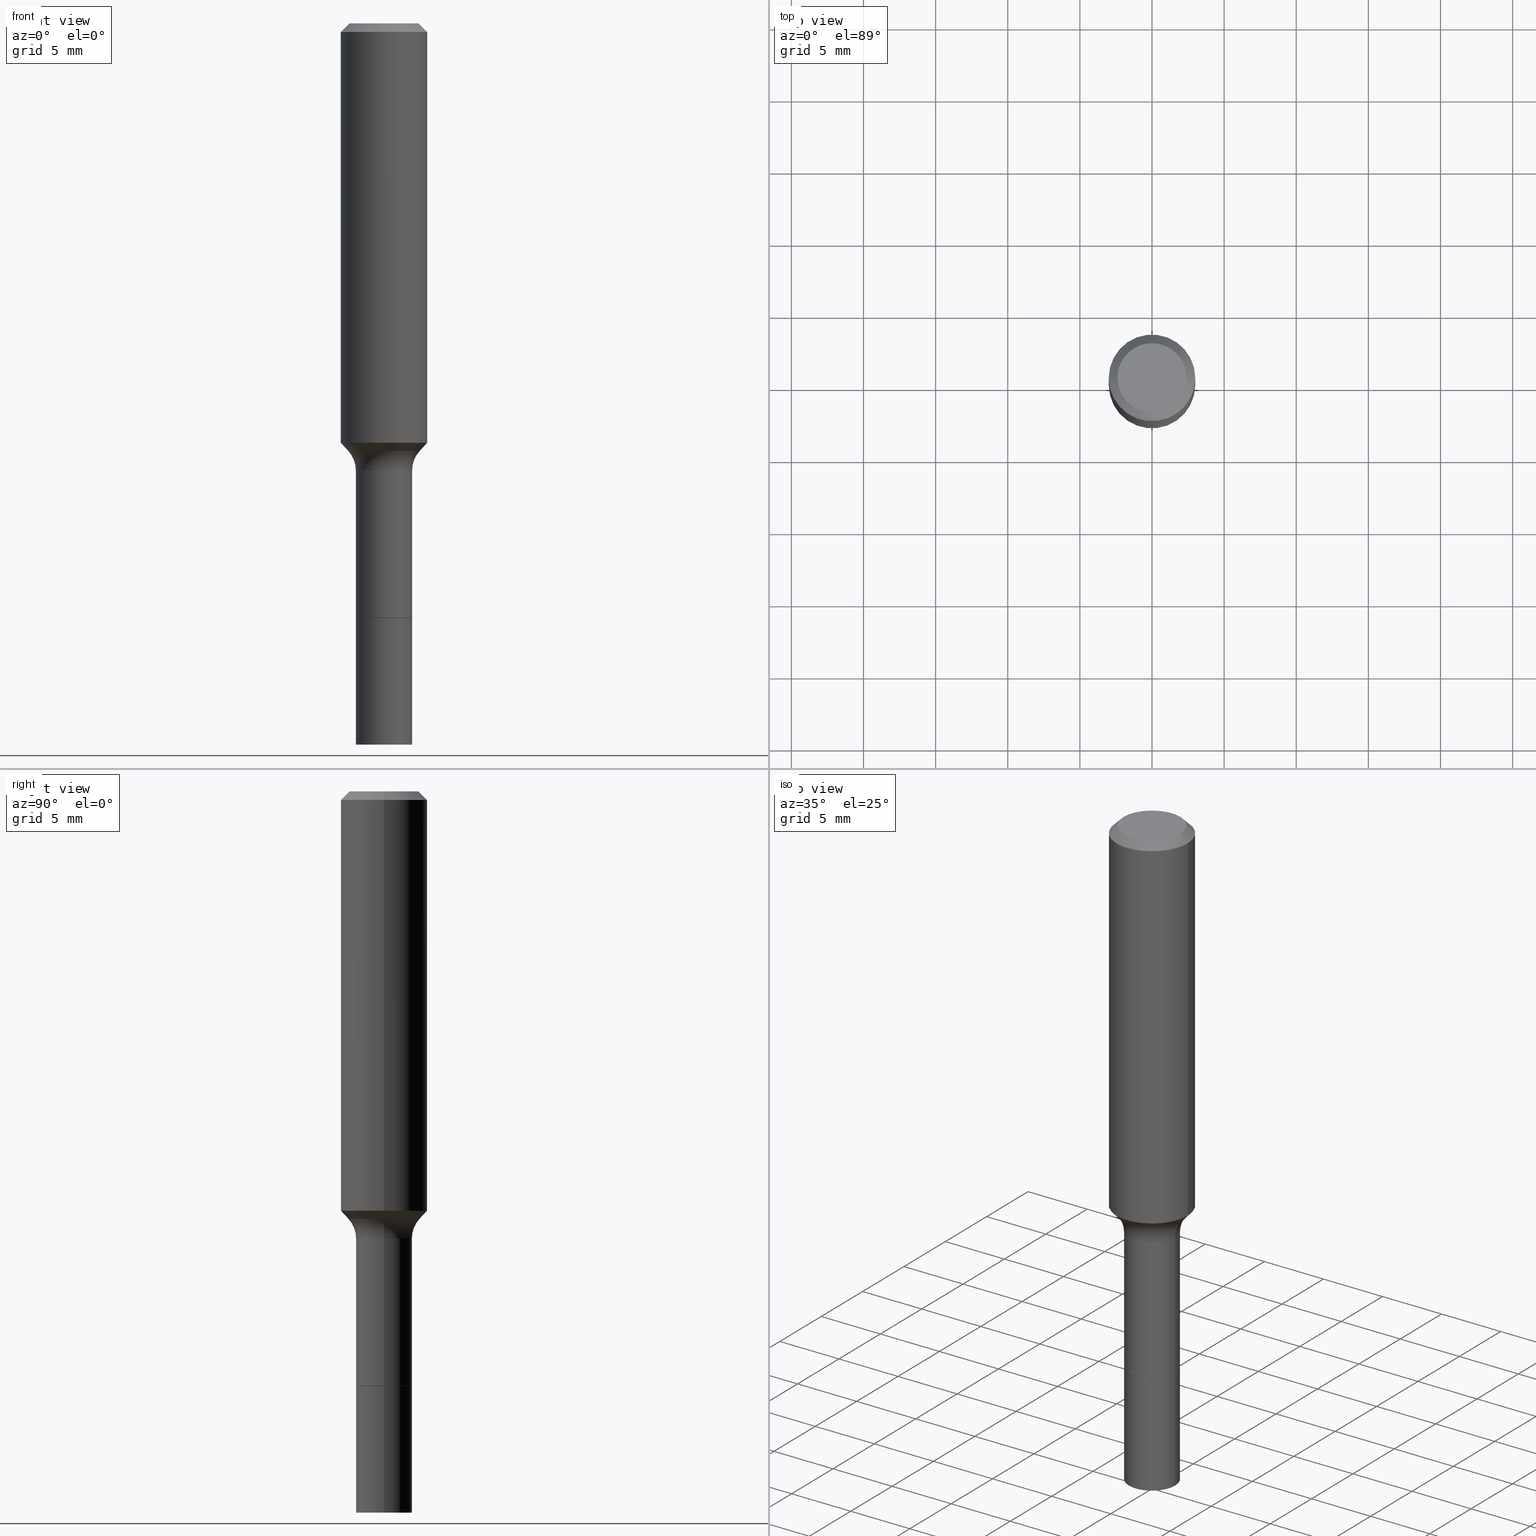
[diagram: canonical four-view strip — front | top / right | iso, engineering-drawing reading convention]
A machine part, canonical four-view strip (front | top / right | iso — engineering-drawing reading convention). The complete STEP part file that produces these views, byte-faithful:
ISO-10303-21;
HEADER;
FILE_DESCRIPTION (( 'STEP AP203' ),
    '1' );
FILE_NAME ('67084.STEP',
    '2025-04-01T15:27:57',
    ( '' ),
    ( '' ),
    'SwSTEP 2.0',
    'SolidWorks 2024',
    '' );
FILE_SCHEMA (( 'CONFIG_CONTROL_DESIGN' ));
ENDSEC;

DATA;
#1 = APPROVAL_PERSON_ORGANIZATION ( #371, #426, #249 ) ;
#2 = ADVANCED_FACE ( 'NONE', ( #292 ), #459, .T. ) ;
#3 = AXIS2_PLACEMENT_3D ( 'NONE', #210, #247, #11 ) ;
#4 = EDGE_CURVE ( 'NONE', #180, #253, #83, .T. ) ;
#5 = CARTESIAN_POINT ( 'NONE',  ( 2.851270220716778580E-29, -4.070858210275671756E-15, -1.165940131194999951 ) ) ;
#6 = ADVANCED_FACE ( 'NONE', ( #436 ), #508, .T. ) ;
#7 = DIRECTION ( 'NONE',  ( -2.445468806185136597E-29, 3.491481338843145583E-15, 1.000000000000000000 ) ) ;
#8 = PRODUCT_DEFINITION_FORMATION_WITH_SPECIFIED_SOURCE ( 'ANY', '', #483, .NOT_KNOWN. ) ;
#9 = CLOSED_SHELL ( 'NONE', ( #117, #131, #486, #209 ) ) ;
#10 = ORIENTED_EDGE ( 'NONE', *, *, #331, .F. ) ;
#11 = DIRECTION ( 'NONE',  ( 1.000000000000000000, -6.982962677686265133E-15, 0.000000000000000000 ) ) ;
#12 = DATE_AND_TIME ( #211, #205 ) ;
#13 = ORIENTED_EDGE ( 'NONE', *, *, #80, .T. ) ;
#14 = CALENDAR_DATE ( 2025, 1, 4 ) ;
#15 = CIRCLE ( 'NONE', #139, 0.07674999999999995715 ) ;
#16 = ORIENTED_EDGE ( 'NONE', *, *, #277, .T. ) ;
#17 = COORDINATED_UNIVERSAL_TIME_OFFSET ( 5, 0, .BEHIND. ) ;
#18 = ORIENTED_EDGE ( 'NONE', *, *, #433, .F. ) ;
#19 = EDGE_CURVE ( 'NONE', #164, #344, #346, .T. ) ;
#20 = CONICAL_SURFACE ( 'NONE', #308, 0.1180999999999999966, 0.7853981633974461696 ) ;
#21 = CYLINDRICAL_SURFACE ( 'NONE', #168, 0.07675000000000006817 ) ;
#22 = DIRECTION ( 'NONE',  ( -2.445468806185136597E-29, 3.491481338843145583E-15, 1.000000000000000000 ) ) ;
#23 = ORIENTED_EDGE ( 'NONE', *, *, #48, .F. ) ;
#24 = DIRECTION ( 'NONE',  ( -2.445468806185136597E-29, 3.491481338843145583E-15, 1.000000000000000000 ) ) ;
#25 = COORDINATED_UNIVERSAL_TIME_OFFSET ( 5, 0, .BEHIND. ) ;
#26 = AXIS2_PLACEMENT_3D ( 'NONE', #5, #318, #481 ) ;
#27 = DIRECTION ( 'NONE',  ( 1.000000000000000000, -6.982962677686263555E-15, 0.000000000000000000 ) ) ;
#28 = ORIENTED_EDGE ( 'NONE', *, *, #64, .T. ) ;
#29 = DIRECTION ( 'NONE',  ( 1.000000000000000000, -6.982962677686267499E-15, 4.875432709231658792E-29 ) ) ;
#30 = DIRECTION ( 'NONE',  ( -2.445468806185136877E-29, 3.491481338843145188E-15, 1.000000000000000000 ) ) ;
#31 = VECTOR ( 'NONE', #443, 39.37007874015748143 ) ;
#32 = DIRECTION ( 'NONE',  ( -2.445468806185136597E-29, 3.491481338843145583E-15, 1.000000000000000000 ) ) ;
#33 = APPROVAL ( #260, 'UNSPECIFIED' ) ;
#34 = DIRECTION ( 'NONE',  ( -6.982962677686266711E-15, -1.000000000000000000, 3.491481338843145583E-15 ) ) ;
#35 = ORIENTED_EDGE ( 'NONE', *, *, #363, .F. ) ;
#36 = DIRECTION ( 'NONE',  ( -2.445468806185136597E-29, 3.491481338843145583E-15, 1.000000000000000000 ) ) ;
#37 = AXIS2_PLACEMENT_3D ( 'NONE', #256, #506, #215 ) ;
#38 = DIRECTION ( 'NONE',  ( -2.445468806185136597E-29, 3.491481338843145583E-15, 1.000000000000000000 ) ) ;
#39 = EDGE_LOOP ( 'NONE', ( #416, #349 ) ) ;
#40 = CIRCLE ( 'NONE', #163, 0.07675000000000012368 ) ;
#41 = ORIENTED_EDGE ( 'NONE', *, *, #229, .F. ) ;
#42 = EDGE_CURVE ( 'NONE', #87, #91, #315, .T. ) ;
#43 = DIRECTION ( 'NONE',  ( -0.7071067811864205632, 7.493145998869895043E-15, 0.7071067811866742492 ) ) ;
#44 = CIRCLE ( 'NONE', #403, 0.1180999999999999966 ) ;
#45 = EDGE_CURVE ( 'NONE', #86, #208, #230, .T. ) ;
#46 = EDGE_CURVE ( 'NONE', #208, #170, #394, .T. ) ;
#47 = ORIENTED_EDGE ( 'NONE', *, *, #162, .F. ) ;
#48 = EDGE_CURVE ( 'NONE', #87, #159, #103, .T. ) ;
#49 = AXIS2_PLACEMENT_3D ( 'NONE', #454, #358, #492 ) ;
#50 = CARTESIAN_POINT ( 'NONE',  ( 5.776197320209328408E-31, -8.246878922347560526E-17, -0.02362000000000014435 ) ) ;
#51 = FACE_OUTER_BOUND ( 'NONE', #329, .T. ) ;
#52 = FACE_OUTER_BOUND ( 'NONE', #113, .T. ) ;
#53 = ORIENTED_EDGE ( 'NONE', *, *, #410, .F. ) ;
#54 = COORDINATED_UNIVERSAL_TIME_OFFSET ( 5, 0, .BEHIND. ) ;
#55 = CIRCLE ( 'NONE', #273, 0.07674999999999999878 ) ;
#56 = VERTEX_POINT ( 'NONE', #339 ) ;
#57 = PERSON_AND_ORGANIZATION_ROLE ( 'creator' ) ;
#58 = ORIENTED_EDGE ( 'NONE', *, *, #277, .F. ) ;
#59 = ORGANIZATION ( 'UNSPECIFIED', 'UNSPECIFIED', '' ) ;
#60 = PERSON_AND_ORGANIZATION ( #382, #59 ) ;
#61 = EDGE_CURVE ( 'NONE', #170, #340, #201, .T. ) ;
#62 = ORIENTED_EDGE ( 'NONE', *, *, #64, .F. ) ;
#63 = FACE_OUTER_BOUND ( 'NONE', #420, .T. ) ;
#64 = EDGE_CURVE ( 'NONE', #180, #130, #302, .T. ) ;
#65 = DIRECTION ( 'NONE',  ( 0.7071067811864205632, -2.468850131080928224E-15, 0.7071067811866742492 ) ) ;
#66 = ORIENTED_EDGE ( 'NONE', *, *, #474, .T. ) ;
#67 = CONICAL_SURFACE ( 'NONE', #155, 0.07625000000000001221, 0.7853981633972689780 ) ;
#68 = CARTESIAN_POINT ( 'NONE',  ( 2.984694677948959472E-29, -4.261352974058059028E-15, -1.220499999999999918 ) ) ;
#69 =( CONVERSION_BASED_UNIT ( 'INCH', #493 ) LENGTH_UNIT ( ) NAMED_UNIT ( #353 ) );
#70 = DIRECTION ( 'NONE',  ( -0.6819983600624976994, 7.399397606724284998E-15, 0.7313537016191712370 ) ) ;
#71 = CC_DESIGN_PERSON_AND_ORGANIZATION_ASSIGNMENT ( #94, #251, ( #359 ) ) ;
#72 = DIRECTION ( 'NONE',  ( -2.445468806185136597E-29, 3.491481338843145583E-15, 1.000000000000000000 ) ) ;
#73 = DIRECTION ( 'NONE',  ( 1.000000000000000000, -6.982962677686261189E-15, 0.000000000000000000 ) ) ;
#74 = CIRCLE ( 'NONE', #516, 0.08000000000000000167 ) ;
#75 = LINE ( 'NONE', #191, #421 ) ;
#76 = CARTESIAN_POINT ( 'NONE',  ( 2.984694677948959472E-29, -4.261352974058059028E-15, -1.220499999999999918 ) ) ;
#77 = EDGE_CURVE ( 'NONE', #250, #340, #183, .T. ) ;
#78 = CARTESIAN_POINT ( 'NONE',  ( -0.07675000000000001266, -5.723613194196990232E-15, -1.622500000000000053 ) ) ;
#79 = DIRECTION ( 'NONE',  ( 1.000000000000000000, -6.982962677686270655E-15, 0.000000000000000000 ) ) ;
#80 = EDGE_CURVE ( 'NONE', #250, #159, #55, .T. ) ;
#81 = AXIS2_PLACEMENT_3D ( 'NONE', #419, #34, #510 ) ;
#82 = DIRECTION ( 'NONE',  ( -2.445468806185136597E-29, 3.491481338843145583E-15, 1.000000000000000000 ) ) ;
#83 = CIRCLE ( 'NONE', #114, 0.1181000000000001354 ) ;
#84 = CARTESIAN_POINT ( 'NONE',  ( 5.776197320209328408E-31, -8.246878922347560526E-17, -0.02362000000000014435 ) ) ;
#85 = CARTESIAN_POINT ( 'NONE',  ( 0.09824170387046644859, -4.756876361795445018E-15, -1.165940131194999951 ) ) ;
#86 = VERTEX_POINT ( 'NONE', #376 ) ;
#87 = VERTEX_POINT ( 'NONE', #189 ) ;
#88 = PLANE ( 'NONE',  #49 ) ;
#89 =( NAMED_UNIT ( * ) PLANE_ANGLE_UNIT ( ) SI_UNIT ( $, .RADIAN. ) );
#90 = TOROIDAL_SURFACE ( 'NONE', #347, 0.1567499999999999727, 0.08000000000000000167 ) ;
#91 = VERTEX_POINT ( 'NONE', #351 ) ;
#92 = ADVANCED_FACE ( 'NONE', ( #503 ), #514, .F. ) ;
#93 = CARTESIAN_POINT ( 'NONE',  ( 2.984694677948959472E-29, -4.261352974058059028E-15, -1.220499999999999918 ) ) ;
#94 = PERSON_AND_ORGANIZATION ( #382, #59 ) ;
#95 = DIRECTION ( 'NONE',  ( -1.000000000000000000, 7.105427357601005014E-15, 0.000000000000000000 ) ) ;
#96 = ORIENTED_EDGE ( 'NONE', *, *, #77, .F. ) ;
#97 = CARTESIAN_POINT ( 'NONE',  ( 0.09447999999999998066, -7.704367267948738690E-16, -3.085620075131172158E-17 ) ) ;
#98 = EDGE_CURVE ( 'NONE', #123, #56, #274, .T. ) ;
#99 = CARTESIAN_POINT ( 'NONE',  ( 0.000000000000000000, 0.000000000000000000, 0.000000000000000000 ) ) ;
#100 = ORIENTED_EDGE ( 'NONE', *, *, #469, .T. ) ;
#101 = DIRECTION ( 'NONE',  ( 1.000000000000000000, -6.982962677686266711E-15, 4.876176775795936353E-29 ) ) ;
#102 = CALENDAR_DATE ( 2025, 1, 4 ) ;
#103 = LINE ( 'NONE', #379, #362 ) ;
#104 = ORIENTED_EDGE ( 'NONE', *, *, #98, .T. ) ;
#105 = VECTOR ( 'NONE', #303, 39.37007874015748143 ) ;
#106 = CARTESIAN_POINT ( 'NONE',  ( 7.545787641473140628E-46, -1.077338491108201769E-31, -3.085620075131671975E-17 ) ) ;
#107 = SECURITY_CLASSIFICATION_LEVEL ( 'unclassified' ) ;
#108 = CARTESIAN_POINT ( 'NONE',  ( 2.851270220716778580E-29, -4.070858210275671756E-15, -1.165940131194999951 ) ) ;
#109 = DIRECTION ( 'NONE',  ( -2.445468806185136597E-29, 3.491481338843145583E-15, 1.000000000000000000 ) ) ;
#110 = AXIS2_PLACEMENT_3D ( 'NONE', #388, #36, #457 ) ;
#111 = DIRECTION ( 'NONE',  ( 1.000000000000000000, -6.982962677686271444E-15, 0.000000000000000000 ) ) ;
#112 = CARTESIAN_POINT ( 'NONE',  ( 3.967773138035384083E-29, -5.664928472273003117E-15, -1.622500000000000053 ) ) ;
#113 = EDGE_LOOP ( 'NONE', ( #407, #104 ) ) ;
#114 = AXIS2_PLACEMENT_3D ( 'NONE', #266, #270, #193 ) ;
#115 = CIRCLE ( 'NONE', #479, 0.07674999999999999878 ) ;
#116 = ORIENTED_EDGE ( 'NONE', *, *, #42, .T. ) ;
#117 = ADVANCED_FACE ( 'NONE', ( #232 ), #298, .T. ) ;
#118 = DESIGN_CONTEXT ( 'detailed design', #190, 'design' ) ;
#119 = VECTOR ( 'NONE', #70, 39.37007874015748143 ) ;
#120 = LINE ( 'NONE', #406, #31 ) ;
#121 = ADVANCED_FACE ( 'NONE', ( #507 ), #220, .T. ) ;
#122 = APPROVAL_PERSON_ORGANIZATION ( #265, #33, #288 ) ;
#123 = VERTEX_POINT ( 'NONE', #78 ) ;
#124 = ORIENTED_EDGE ( 'NONE', *, *, #162, .T. ) ;
#125 = ORIENTED_EDGE ( 'NONE', *, *, #19, .F. ) ;
#126 = EDGE_LOOP ( 'NONE', ( #325, #515, #513, #491 ) ) ;
#127 = DIRECTION ( 'NONE',  ( 2.445468806185136597E-29, -3.491481338843145583E-15, -1.000000000000000000 ) ) ;
#128 = DATE_TIME_ROLE ( 'classification_date' ) ;
#129 = EDGE_CURVE ( 'NONE', #86, #340, #74, .T. ) ;
#130 = VERTEX_POINT ( 'NONE', #435 ) ;
#131 = ADVANCED_FACE ( 'NONE', ( #313 ), #88, .T. ) ;
#132 = DIRECTION ( 'NONE',  ( 1.000000000000000000, -6.982962677686261189E-15, 0.000000000000000000 ) ) ;
#133 = CIRCLE ( 'NONE', #441, 0.09447999999999998066 ) ;
#134 = ORIENTED_EDGE ( 'NONE', *, *, #401, .T. ) ;
#135 = ORIENTED_EDGE ( 'NONE', *, *, #271, .F. ) ;
#136 = DIRECTION ( 'NONE',  ( -2.445468806185136597E-29, 3.491481338843145583E-15, 1.000000000000000000 ) ) ;
#137 = EDGE_LOOP ( 'NONE', ( #41, #134, #66, #135 ) ) ;
#138 = DIRECTION ( 'NONE',  ( 1.000000000000000000, -6.982962677686265922E-15, 0.000000000000000000 ) ) ;
#139 = AXIS2_PLACEMENT_3D ( 'NONE', #68, #24, #223 ) ;
#140 = DIRECTION ( 'NONE',  ( 1.000000000000000000, -6.982962677686271444E-15, 0.000000000000000000 ) ) ;
#141 = LINE ( 'NONE', #463, #490 ) ;
#142 = APPLICATION_PROTOCOL_DEFINITION ( 'international standard', 'config_control_design', 1994, #246 ) ;
#143 = CARTESIAN_POINT ( 'NONE',  ( 3.967773138035384644E-29, -5.664928472273003906E-15, -1.622500000000000275 ) ) ;
#144 = AXIS2_PLACEMENT_3D ( 'NONE', #387, #38, #73 ) ;
#145 = CARTESIAN_POINT ( 'NONE',  ( 0.000000000000000000, 0.000000000000000000, 0.000000000000000000 ) ) ;
#146 = CARTESIAN_POINT ( 'NONE',  ( -0.07674999999999997102, 5.453415496958766868E-16, -3.775282681770638931E-30 ) ) ;
#147 = ORIENTED_EDGE ( 'NONE', *, *, #240, .T. ) ;
#148 = DIRECTION ( 'NONE',  ( 1.000000000000000000, -6.982962677686266711E-15, 4.876176775795936353E-29 ) ) ;
#149 = CARTESIAN_POINT ( 'NONE',  ( -9.143302097589743756E-31, -1.147794272764384760E-14, -1.622500000000000053 ) ) ;
#150 = ORIENTED_EDGE ( 'NONE', *, *, #45, .F. ) ;
#151 = EDGE_CURVE ( 'NONE', #344, #164, #40, .T. ) ;
#152 = ORIENTED_EDGE ( 'NONE', *, *, #395, .F. ) ;
#153 = DIRECTION ( 'NONE',  ( 1.000000000000000000, -6.982962677686270655E-15, 0.000000000000000000 ) ) ;
#154 = ORIENTED_EDGE ( 'NONE', *, *, #19, .T. ) ;
#155 = AXIS2_PLACEMENT_3D ( 'NONE', #282, #206, #360 ) ;
#156 = CC_DESIGN_DATE_AND_TIME_ASSIGNMENT ( #423, #365, ( #404 ) ) ;
#157 = CARTESIAN_POINT ( 'NONE',  ( 7.545787641473140628E-46, -1.077338491108201769E-31, -3.085620075131671975E-17 ) ) ;
#158 = CC_DESIGN_APPROVAL ( #33, ( #404 ) ) ;
#159 = VERTEX_POINT ( 'NONE', #326 ) ;
#160 = CC_DESIGN_APPROVAL ( #426, ( #359 ) ) ;
#161 = CARTESIAN_POINT ( 'NONE',  ( 0.07674999999999995715, -4.797295359570479556E-15, -1.220499999999999918 ) ) ;
#162 = EDGE_CURVE ( 'NONE', #344, #123, #279, .T. ) ;
#163 = AXIS2_PLACEMENT_3D ( 'NONE', #214, #7, #132 ) ;
#164 = VERTEX_POINT ( 'NONE', #286 ) ;
#165 = CARTESIAN_POINT ( 'NONE',  ( 3.772893820736570314E-46, -5.386692455541008845E-32, -1.542810037565835988E-17 ) ) ;
#166 = CALENDAR_DATE ( 2025, 1, 4 ) ;
#167 = ORIENTED_EDGE ( 'NONE', *, *, #389, .F. ) ;
#168 = AXIS2_PLACEMENT_3D ( 'NONE', #174, #337, #138 ) ;
#169 = APPROVAL_STATUS ( 'not_yet_approved' ) ;
#170 = VERTEX_POINT ( 'NONE', #161 ) ;
#171 = ORIENTED_EDGE ( 'NONE', *, *, #395, .T. ) ;
#172 = CONICAL_SURFACE ( 'NONE', #484, 0.09824170387046647634, 0.7504915783575606403 ) ;
#173 = EDGE_LOOP ( 'NONE', ( #154, #124, #10, #377 ) ) ;
#174 = CARTESIAN_POINT ( 'NONE',  ( 3.967773138035384083E-29, -5.664928472273003117E-15, -1.622500000000000053 ) ) ;
#175 = DIRECTION ( 'NONE',  ( -2.445468806185136597E-29, 3.491481338843145583E-15, 1.000000000000000000 ) ) ;
#176 = ORIENTED_EDGE ( 'NONE', *, *, #363, .T. ) ;
#177 = CARTESIAN_POINT ( 'NONE',  ( -0.09447999999999998066, 7.009847083995354710E-16, -3.085620075132147757E-17 ) ) ;
#178 = APPROVAL_DATE_TIME ( #327, #236 ) ;
#179 = DIRECTION ( 'NONE',  ( -2.445468806185136597E-29, 3.491481338843145583E-15, 1.000000000000000000 ) ) ;
#180 = VERTEX_POINT ( 'NONE', #488 ) ;
#181 = CARTESIAN_POINT ( 'NONE',  ( 3.967773138035384644E-29, -5.664928472273003906E-15, -1.622500000000000275 ) ) ;
#182 = SHAPE_DEFINITION_REPRESENTATION ( #199, #311 ) ;
#183 = LINE ( 'NONE', #146, #301 ) ;
#184 = ORIENTED_EDGE ( 'NONE', *, *, #469, .F. ) ;
#185 = AXIS2_PLACEMENT_3D ( 'NONE', #197, #212, #203 ) ;
#186 = DIRECTION ( 'NONE',  ( 0.6819983600624976994, -2.208861293262466731E-15, 0.7313537016191712370 ) ) ;
#187 = MANIFOLD_SOLID_BREP ( 'Body-Move/Copy2[1]', #9 ) ;
#188 = ADVANCED_FACE ( 'NONE', ( #324 ), #90, .F. ) ;
#189 = CARTESIAN_POINT ( 'NONE',  ( 0.07625000000000001221, -6.197379376446582216E-15, -1.622500000000000275 ) ) ;
#190 = APPLICATION_CONTEXT ( 'configuration controlled 3d designs of mechanical parts and assemblies' ) ;
#191 = CARTESIAN_POINT ( 'NONE',  ( 0.09824170387046647634, -4.756876361795445807E-15, -1.165940131194999951 ) ) ;
#192 = CIRCLE ( 'NONE', #267, 0.09447999999999998066 ) ;
#193 = DIRECTION ( 'NONE',  ( 1.000000000000000000, -6.982962677686265133E-15, 0.000000000000000000 ) ) ;
#194 = MANIFOLD_SOLID_BREP ( 'Body-Move/Copy2[2]', #494 ) ;
#195 = ORIENTED_EDGE ( 'NONE', *, *, #389, .T. ) ;
#196 = AXIS2_PLACEMENT_3D ( 'NONE', #145, #422, #101 ) ;
#197 = CARTESIAN_POINT ( 'NONE',  ( 3.967773138035384083E-29, -5.664928472273003117E-15, -1.622500000000000053 ) ) ;
#198 = DIRECTION ( 'NONE',  ( 1.000000000000000000, -6.982962677686259611E-15, 0.000000000000000000 ) ) ;
#199 = PRODUCT_DEFINITION_SHAPE ( 'NONE', 'NONE',  #404 ) ;
#200 = APPROVAL_PERSON_ORGANIZATION ( #224, #236, #464 ) ;
#201 = CIRCLE ( 'NONE', #496, 0.07674999999999995715 ) ;
#202 = ADVANCED_FACE ( 'NONE', ( #368 ), #409, .T. ) ;
#203 = DIRECTION ( 'NONE',  ( -1.000000000000000000, 6.982962677686265922E-15, -4.876176775795935793E-29 ) ) ;
#204 = DIRECTION ( 'NONE',  ( 2.445468806185136597E-29, -3.491481338843145583E-15, -1.000000000000000000 ) ) ;
#205 = LOCAL_TIME ( 11, 27, 57.00000000000000000, #54 ) ;
#206 = DIRECTION ( 'NONE',  ( -2.445468806185136597E-29, 3.491481338843145583E-15, 1.000000000000000000 ) ) ;
#207 = PLANE ( 'NONE',  #185 ) ;
#208 = VERTEX_POINT ( 'NONE', #85 ) ;
#209 = ADVANCED_FACE ( 'NONE', ( #52 ), #207, .F. ) ;
#210 = CARTESIAN_POINT ( 'NONE',  ( 2.799192946632236054E-29, -3.996505664790683572E-15, -1.144644715791283796 ) ) ;
#211 = CALENDAR_DATE ( 2025, 1, 4 ) ;
#212 = DIRECTION ( 'NONE',  ( 2.438088387897960049E-29, -3.491481338843145188E-15, -1.000000000000000000 ) ) ;
#213 = EDGE_LOOP ( 'NONE', ( #150, #456, #171, #372 ) ) ;
#214 = CARTESIAN_POINT ( 'NONE',  ( 4.813905344975441835E-29, -6.872981015512731707E-15, -1.968500000000000139 ) ) ;
#215 = DIRECTION ( 'NONE',  ( 1.000000000000000000, 0.000000000000000000, 0.000000000000000000 ) ) ;
#216 = ORIENTED_EDGE ( 'NONE', *, *, #448, .F. ) ;
#217 = ORIENTED_EDGE ( 'NONE', *, *, #4, .T. ) ;
#218 = CYLINDRICAL_SURFACE ( 'NONE', #417, 0.1181000000000000660 ) ;
#219 = COORDINATED_UNIVERSAL_TIME_OFFSET ( 5, 0, .BEHIND. ) ;
#220 = CONICAL_SURFACE ( 'NONE', #334, 0.07625000000000001221, 0.7853981633972689780 ) ;
#221 = DIRECTION ( 'NONE',  ( -2.445468806185136877E-29, 3.491481338843145188E-15, 1.000000000000000000 ) ) ;
#222 = EDGE_LOOP ( 'NONE', ( #281, #216 ) ) ;
#223 = DIRECTION ( 'NONE',  ( 1.000000000000000000, -6.982962677686263555E-15, 0.000000000000000000 ) ) ;
#224 = PERSON_AND_ORGANIZATION ( #382, #59 ) ;
#225 = CARTESIAN_POINT ( 'NONE',  ( 0.1181000000000000660, -8.246878922347485584E-16, 5.758764772215003944E-30 ) ) ;
#226 = FACE_OUTER_BOUND ( 'NONE', #213, .T. ) ;
#227 = ORIENTED_EDGE ( 'NONE', *, *, #410, .T. ) ;
#228 = FACE_OUTER_BOUND ( 'NONE', #413, .T. ) ;
#229 = EDGE_CURVE ( 'NONE', #482, #405, #133, .T. ) ;
#230 = CIRCLE ( 'NONE', #287, 0.09824170387046647634 ) ;
#231 = CARTESIAN_POINT ( 'NONE',  ( 0.07675000000000006817, -6.200870857785424434E-15, -1.622500000000000053 ) ) ;
#232 = FACE_OUTER_BOUND ( 'NONE', #173, .T. ) ;
#233 = CC_DESIGN_SECURITY_CLASSIFICATION ( #359, ( #8 ) ) ;
#234 = ORIENTED_EDGE ( 'NONE', *, *, #61, .F. ) ;
#235 = LINE ( 'NONE', #238, #475 ) ;
#236 = APPROVAL ( #169, 'UNSPECIFIED' ) ;
#237 = AXIS2_PLACEMENT_3D ( 'NONE', #50, #204, #444 ) ;
#238 = CARTESIAN_POINT ( 'NONE',  ( -0.07625000000000001221, -5.123139636255927230E-15, -1.622500000000000275 ) ) ;
#239 = FACE_OUTER_BOUND ( 'NONE', #258, .T. ) ;
#240 = EDGE_CURVE ( 'NONE', #159, #250, #115, .T. ) ;
#241 = AXIS2_PLACEMENT_3D ( 'NONE', #165, #364, #400 ) ;
#242 = DIRECTION ( 'NONE',  ( -2.445468806185136597E-29, 3.491481338843145583E-15, 1.000000000000000000 ) ) ;
#243 = ADVANCED_FACE ( 'NONE', ( #239 ), #172, .T. ) ;
#244 = EDGE_LOOP ( 'NONE', ( #147, #332, #234, #167 ) ) ;
#245 = ORIENTED_EDGE ( 'NONE', *, *, #474, .F. ) ;
#246 = APPLICATION_CONTEXT ( 'configuration controlled 3d designs of mechanical parts and assemblies' ) ;
#247 = DIRECTION ( 'NONE',  ( -2.445468806185136597E-29, 3.491481338843145583E-15, 1.000000000000000000 ) ) ;
#248 = VECTOR ( 'NONE', #30, 39.37007874015748143 ) ;
#249 = APPROVAL_ROLE ( '' ) ;
#250 = VERTEX_POINT ( 'NONE', #393 ) ;
#251 = PERSON_AND_ORGANIZATION_ROLE ( 'classification_officer' ) ;
#252 = CIRCLE ( 'NONE', #428, 0.07625000000000001221 ) ;
#253 = VERTEX_POINT ( 'NONE', #396 ) ;
#254 = LOCAL_TIME ( 11, 27, 57.00000000000000000, #17 ) ;
#255 = CARTESIAN_POINT ( 'NONE',  ( -0.07674999999999995715, -4.416926303134944719E-15, -1.220499999999999918 ) ) ;
#256 = CARTESIAN_POINT ( 'NONE',  ( 0.000000000000000000, 0.000000000000000000, 0.000000000000000000 ) ) ;
#257 = DIRECTION ( 'NONE',  ( 1.000000000000000000, -6.982962677686270655E-15, 0.000000000000000000 ) ) ;
#258 = EDGE_LOOP ( 'NONE', ( #498, #263, #299, #35 ) ) ;
#259 = FACE_OUTER_BOUND ( 'NONE', #460, .T. ) ;
#260 = APPROVAL_STATUS ( 'not_yet_approved' ) ;
#261 = TOROIDAL_SURFACE ( 'NONE', #321, 0.1567499999999999727, 0.08000000000000000167 ) ;
#262 = EDGE_CURVE ( 'NONE', #91, #250, #235, .T. ) ;
#263 = ORIENTED_EDGE ( 'NONE', *, *, #433, .T. ) ;
#264 = DIRECTION ( 'NONE',  ( -2.445468806185136877E-29, 3.491481338843145188E-15, 1.000000000000000000 ) ) ;
#265 = PERSON_AND_ORGANIZATION ( #382, #59 ) ;
#266 = CARTESIAN_POINT ( 'NONE',  ( 2.799192946632236054E-29, -3.996505664790683572E-15, -1.144644715791283796 ) ) ;
#267 = AXIS2_PLACEMENT_3D ( 'NONE', #106, #72, #29 ) ;
#268 = DIRECTION ( 'NONE',  ( 1.000000000000000000, -6.982962677686266711E-15, 0.000000000000000000 ) ) ;
#269 = LOCAL_TIME ( 11, 27, 57.00000000000000000, #25 ) ;
#270 = DIRECTION ( 'NONE',  ( -2.445468806185136597E-29, 3.491481338843145583E-15, 1.000000000000000000 ) ) ;
#271 = EDGE_CURVE ( 'NONE', #405, #470, #120, .T. ) ;
#272 = LINE ( 'NONE', #504, #105 ) ;
#273 = AXIS2_PLACEMENT_3D ( 'NONE', #304, #348, #354 ) ;
#274 = CIRCLE ( 'NONE', #399, 0.07675000000000001266 ) ;
#275 = DIRECTION ( 'NONE',  ( 1.000000000000000000, -6.982962677686267499E-15, 4.875432709231658792E-29 ) ) ;
#276 = AXIS2_PLACEMENT_3D ( 'NONE', #149, #466, #424 ) ;
#277 = EDGE_CURVE ( 'NONE', #253, #180, #386, .T. ) ;
#278 = VECTOR ( 'NONE', #480, 39.37007874015748143 ) ;
#279 = LINE ( 'NONE', #320, #278 ) ;
#280 = ORIENTED_EDGE ( 'NONE', *, *, #98, .F. ) ;
#281 = ORIENTED_EDGE ( 'NONE', *, *, #42, .F. ) ;
#282 = CARTESIAN_POINT ( 'NONE',  ( 3.967773138035384644E-29, -5.664928472273003906E-15, -1.622500000000000275 ) ) ;
#283 = DIRECTION ( 'NONE',  ( 1.000000000000000000, -6.982962677686265133E-15, 4.883557194083112340E-29 ) ) ;
#284 = DATE_AND_TIME ( #14, #415 ) ;
#285 = ORIENTED_EDGE ( 'NONE', *, *, #448, .T. ) ;
#286 = CARTESIAN_POINT ( 'NONE',  ( 0.07675000000000012368, -7.408923401025153024E-15, -1.968500000000000139 ) ) ;
#287 = AXIS2_PLACEMENT_3D ( 'NONE', #108, #22, #257 ) ;
#288 = APPROVAL_ROLE ( '' ) ;
#289 = ORIENTED_EDGE ( 'NONE', *, *, #45, .T. ) ;
#290 = DIRECTION ( 'NONE',  ( 1.000000000000000000, -6.982962677686265922E-15, 4.876176775795935793E-29 ) ) ;
#291 =( LENGTH_UNIT ( ) NAMED_UNIT ( * ) SI_UNIT ( $, .METRE. ) );
#292 = FACE_OUTER_BOUND ( 'NONE', #244, .T. ) ;
#293 = EDGE_LOOP ( 'NONE', ( #18, #289, #176, #58 ) ) ;
#294 = CYLINDRICAL_SURFACE ( 'NONE', #196, 0.1181000000000000660 ) ;
#295 = PRODUCT_RELATED_PRODUCT_CATEGORY ( 'detail', '', ( #483 ) ) ;
#296 = COORDINATED_UNIVERSAL_TIME_OFFSET ( 5, 0, .BEHIND. ) ;
#297 = CC_DESIGN_APPROVAL ( #236, ( #8 ) ) ;
#298 = CYLINDRICAL_SURFACE ( 'NONE', #453, 0.07675000000000006817 ) ;
#299 = ORIENTED_EDGE ( 'NONE', *, *, #4, .F. ) ;
#300 = LINE ( 'NONE', #383, #119 ) ;
#301 = VECTOR ( 'NONE', #221, 39.37007874015748143 ) ;
#302 = LINE ( 'NONE', #225, #248 ) ;
#303 = DIRECTION ( 'NONE',  ( -2.445468806185136877E-29, 3.491481338843145188E-15, 1.000000000000000000 ) ) ;
#304 = CARTESIAN_POINT ( 'NONE',  ( 3.966550403632291282E-29, -5.663182731603581614E-15, -1.622000000000000108 ) ) ;
#305 = EDGE_LOOP ( 'NONE', ( #116, #447, #487, #23 ) ) ;
#306 = DIRECTION ( 'NONE',  ( 1.000000000000000000, -6.982962677686265133E-15, 0.000000000000000000 ) ) ;
#307 = DIRECTION ( 'NONE',  ( -2.445468806185136597E-29, 3.491481338843145583E-15, 1.000000000000000000 ) ) ;
#308 = AXIS2_PLACEMENT_3D ( 'NONE', #84, #127, #402 ) ;
#309 = CARTESIAN_POINT ( 'NONE',  ( 3.967773138035384644E-29, -5.664928472273003906E-15, -1.622500000000000275 ) ) ;
#310 = CARTESIAN_POINT ( 'NONE',  ( 3.966550403632291282E-29, -5.663182731603581614E-15, -1.622000000000000108 ) ) ;
#311 = ADVANCED_BREP_SHAPE_REPRESENTATION ( '67084', ( #187, #194, #37 ), #369 ) ;
#312 = DATE_AND_TIME ( #497, #254 ) ;
#313 = FACE_OUTER_BOUND ( 'NONE', #429, .T. ) ;
#314 = ADVANCED_FACE ( 'NONE', ( #411 ), #449, .F. ) ;
#315 = CIRCLE ( 'NONE', #434, 0.07625000000000001221 ) ;
#316 = DIRECTION ( 'NONE',  ( 1.000000000000000000, -6.982962677686265133E-15, 0.000000000000000000 ) ) ;
#317 = ADVANCED_FACE ( 'NONE', ( #442 ), #20, .T. ) ;
#318 = DIRECTION ( 'NONE',  ( -2.445468806185136597E-29, 3.491481338843145583E-15, 1.000000000000000000 ) ) ;
#319 = ORIENTED_EDGE ( 'NONE', *, *, #271, .T. ) ;
#320 = CARTESIAN_POINT ( 'NONE',  ( -0.07675000000000006817, -5.119586922577125543E-15, -1.622500000000000053 ) ) ;
#321 = AXIS2_PLACEMENT_3D ( 'NONE', #350, #461, #418 ) ;
#322 = CARTESIAN_POINT ( 'NONE',  ( 3.967773138035384083E-29, -5.664928472273003117E-15, -1.622500000000000053 ) ) ;
#323 = ADVANCED_FACE ( 'NONE', ( #51 ), #67, .T. ) ;
#324 = FACE_OUTER_BOUND ( 'NONE', #126, .T. ) ;
#325 = ORIENTED_EDGE ( 'NONE', *, *, #129, .F. ) ;
#326 = CARTESIAN_POINT ( 'NONE',  ( 0.07674999999999999878, -6.199125117116002142E-15, -1.622000000000000108 ) ) ;
#327 = DATE_AND_TIME ( #166, #269 ) ;
#328 = CIRCLE ( 'NONE', #110, 0.1180999999999999966 ) ;
#329 = EDGE_LOOP ( 'NONE', ( #366, #285, #336, #370 ) ) ;
#330 = PERSON_AND_ORGANIZATION_ROLE ( 'creator' ) ;
#331 = EDGE_CURVE ( 'NONE', #56, #123, #373, .T. ) ;
#332 = ORIENTED_EDGE ( 'NONE', *, *, #77, .T. ) ;
#333 = ADVANCED_FACE ( 'NONE', ( #259 ), #294, .T. ) ;
#334 = AXIS2_PLACEMENT_3D ( 'NONE', #143, #82, #316 ) ;
#335 = PERSON_AND_ORGANIZATION ( #382, #59 ) ;
#336 = ORIENTED_EDGE ( 'NONE', *, *, #48, .T. ) ;
#337 = DIRECTION ( 'NONE',  ( -2.445468806185136597E-29, 3.491481338843145583E-15, 1.000000000000000000 ) ) ;
#338 = MECHANICAL_CONTEXT ( 'NONE', #246, 'mechanical' ) ;
#339 = CARTESIAN_POINT ( 'NONE',  ( 0.07675000000000001266, -6.200870857785424434E-15, -1.622500000000000053 ) ) ;
#340 = VERTEX_POINT ( 'NONE', #255 ) ;
#341 = VECTOR ( 'NONE', #264, 39.37007874015748143 ) ;
#342 = PERSON_AND_ORGANIZATION ( #382, #59 ) ;
#343 = DIRECTION ( 'NONE',  ( 1.000000000000000000, -6.982962677686265922E-15, 0.000000000000000000 ) ) ;
#344 = VERTEX_POINT ( 'NONE', #427 ) ;
#345 = CARTESIAN_POINT ( 'NONE',  ( 5.776197320209328408E-31, -8.246878922347560526E-17, -0.02362000000000014435 ) ) ;
#346 = CIRCLE ( 'NONE', #144, 0.07675000000000012368 ) ;
#347 = AXIS2_PLACEMENT_3D ( 'NONE', #93, #242, #283 ) ;
#348 = DIRECTION ( 'NONE',  ( -2.445468806185136597E-29, 3.491481338843145583E-15, 1.000000000000000000 ) ) ;
#349 = ORIENTED_EDGE ( 'NONE', *, *, #229, .T. ) ;
#350 = CARTESIAN_POINT ( 'NONE',  ( 2.984694677948959472E-29, -4.261352974058059028E-15, -1.220499999999999918 ) ) ;
#351 = CARTESIAN_POINT ( 'NONE',  ( -0.07625000000000001221, -5.120490409081816818E-15, -1.622500000000000275 ) ) ;
#352 = DIRECTION ( 'NONE',  ( -2.445468806185136877E-29, 3.491481338843145188E-15, 1.000000000000000000 ) ) ;
#353 = DIMENSIONAL_EXPONENTS ( 1.000000000000000000, 0.000000000000000000, 0.000000000000000000, 0.000000000000000000, 0.000000000000000000, 0.000000000000000000, 0.000000000000000000 ) ;
#354 = DIRECTION ( 'NONE',  ( 1.000000000000000000, -6.982962677686259611E-15, 0.000000000000000000 ) ) ;
#355 = AXIS2_PLACEMENT_3D ( 'NONE', #322, #485, #111 ) ;
#356 = APPROVAL_DATE_TIME ( #312, #426 ) ;
#357 = DIRECTION ( 'NONE',  ( -2.445468806185136597E-29, 3.491481338843145583E-15, 1.000000000000000000 ) ) ;
#358 = DIRECTION ( 'NONE',  ( 2.438088387897960049E-29, -3.491481338843145188E-15, -1.000000000000000000 ) ) ;
#359 = SECURITY_CLASSIFICATION ( '', '', #107 ) ;
#360 = DIRECTION ( 'NONE',  ( 1.000000000000000000, -6.982962677686265133E-15, 0.000000000000000000 ) ) ;
#361 = ORIENTED_EDGE ( 'NONE', *, *, #151, .F. ) ;
#362 = VECTOR ( 'NONE', #65, 39.37007874015748854 ) ;
#363 = EDGE_CURVE ( 'NONE', #208, #180, #75, .T. ) ;
#364 = DIRECTION ( 'NONE',  ( 2.438088387897960049E-29, -3.491481338843145188E-15, -1.000000000000000000 ) ) ;
#365 = DATE_TIME_ROLE ( 'creation_date' ) ;
#366 = ORIENTED_EDGE ( 'NONE', *, *, #262, .F. ) ;
#367 = ADVANCED_FACE ( 'NONE', ( #226 ), #261, .F. ) ;
#368 = FACE_OUTER_BOUND ( 'NONE', #425, .T. ) ;
#369 =( GEOMETRIC_REPRESENTATION_CONTEXT ( 3 ) GLOBAL_UNCERTAINTY_ASSIGNED_CONTEXT ( ( #499 ) ) GLOBAL_UNIT_ASSIGNED_CONTEXT ( ( #69, #89, #375 ) ) REPRESENTATION_CONTEXT ( 'NONE', 'WORKASPACE' ) );
#370 = ORIENTED_EDGE ( 'NONE', *, *, #80, .F. ) ;
#371 = PERSON_AND_ORGANIZATION ( #382, #59 ) ;
#372 = ORIENTED_EDGE ( 'NONE', *, *, #46, .F. ) ;
#373 = CIRCLE ( 'NONE', #355, 0.07675000000000001266 ) ;
#374 = CARTESIAN_POINT ( 'NONE',  ( -0.1181000000000000660, 8.391509709326787887E-16, -5.809262341591047287E-30 ) ) ;
#375 =( NAMED_UNIT ( * ) SI_UNIT ( $, .STERADIAN. ) SOLID_ANGLE_UNIT ( ) );
#376 = CARTESIAN_POINT ( 'NONE',  ( -0.09824170387046644859, -3.372808919937123320E-15, -1.165940131194999951 ) ) ;
#377 = ORIENTED_EDGE ( 'NONE', *, *, #440, .F. ) ;
#378 = DIRECTION ( 'NONE',  ( 0.7071067811865460184, -7.319954787623251312E-15, -0.7071067811865490160 ) ) ;
#379 = CARTESIAN_POINT ( 'NONE',  ( 0.07625000000000001221, -6.197379376446582216E-15, -1.622500000000000275 ) ) ;
#380 = AXIS2_PLACEMENT_3D ( 'NONE', #500, #32, #290 ) ;
#381 = EDGE_LOOP ( 'NONE', ( #217, #227, #245, #62 ) ) ;
#382 = PERSON ( 'UNSPECIFIED', 'UNSPECIFIED', 'UNSPECIFIED', ('UNSPECIFIED'), ('UNSPECIFIED'), ('UNSPECIFIED') ) ;
#383 = CARTESIAN_POINT ( 'NONE',  ( -0.09824170387046647634, -3.372808919937122926E-15, -1.165940131194999951 ) ) ;
#384 = DIRECTION ( 'NONE',  ( -2.445468806185136597E-29, 3.491481338843145583E-15, 1.000000000000000000 ) ) ;
#385 = CYLINDRICAL_SURFACE ( 'NONE', #380, 0.07674999999999997102 ) ;
#386 = CIRCLE ( 'NONE', #3, 0.1181000000000001354 ) ;
#387 = CARTESIAN_POINT ( 'NONE',  ( 4.813905344975441835E-29, -6.872981015512731707E-15, -1.968500000000000139 ) ) ;
#388 = CARTESIAN_POINT ( 'NONE',  ( 5.776197320209328408E-31, -8.246878922347560526E-17, -0.02362000000000014435 ) ) ;
#389 = EDGE_CURVE ( 'NONE', #159, #170, #272, .T. ) ;
#390 = DIRECTION ( 'NONE',  ( 1.000000000000000000, -6.982962677686265922E-15, 4.876176775795935793E-29 ) ) ;
#391 = CARTESIAN_POINT ( 'NONE',  ( -0.1567499999999999727, -3.147577235754102378E-15, -1.220499999999999918 ) ) ;
#392 = ADVANCED_FACE ( 'NONE', ( #432 ), #218, .T. ) ;
#393 = CARTESIAN_POINT ( 'NONE',  ( -0.07675000000000001266, -4.416926303134944719E-15, -1.622000000000000108 ) ) ;
#394 = CIRCLE ( 'NONE', #81, 0.08000000000000000167 ) ;
#395 = EDGE_CURVE ( 'NONE', #340, #170, #15, .T. ) ;
#396 = CARTESIAN_POINT ( 'NONE',  ( -0.1181000000000001354, -3.157354693858003797E-15, -1.144644715791283796 ) ) ;
#397 = CIRCLE ( 'NONE', #26, 0.09824170387046647634 ) ;
#398 = CC_DESIGN_PERSON_AND_ORGANIZATION_ASSIGNMENT ( #455, #412, ( #483 ) ) ;
#399 = AXIS2_PLACEMENT_3D ( 'NONE', #112, #307, #140 ) ;
#400 = DIRECTION ( 'NONE',  ( -1.000000000000000000, 6.982962677686265922E-15, -4.876176775795935793E-29 ) ) ;
#401 = EDGE_CURVE ( 'NONE', #482, #130, #141, .T. ) ;
#402 = DIRECTION ( 'NONE',  ( -1.000000000000000000, 6.982962677686266711E-15, 0.000000000000000000 ) ) ;
#403 = AXIS2_PLACEMENT_3D ( 'NONE', #345, #511, #268 ) ;
#404 = PRODUCT_DEFINITION ( 'UNKNOWN', '', #8, #118 ) ;
#405 = VERTEX_POINT ( 'NONE', #177 ) ;
#406 = CARTESIAN_POINT ( 'NONE',  ( -0.1180999999999999966, 7.422191030112725094E-16, -0.02362000000000014435 ) ) ;
#407 = ORIENTED_EDGE ( 'NONE', *, *, #331, .T. ) ;
#408 = AXIS2_PLACEMENT_3D ( 'NONE', #99, #175, #390 ) ;
#409 = CONICAL_SURFACE ( 'NONE', #237, 0.1180999999999999966, 0.7853981633974461696 ) ;
#410 = EDGE_CURVE ( 'NONE', #253, #470, #430, .T. ) ;
#411 = FACE_OUTER_BOUND ( 'NONE', #39, .T. ) ;
#412 = PERSON_AND_ORGANIZATION_ROLE ( 'design_owner' ) ;
#413 = EDGE_LOOP ( 'NONE', ( #96, #13, #195, #152 ) ) ;
#414 = PERSON_AND_ORGANIZATION_ROLE ( 'design_supplier' ) ;
#415 = LOCAL_TIME ( 11, 27, 57.00000000000000000, #219 ) ;
#416 = ORIENTED_EDGE ( 'NONE', *, *, #465, .T. ) ;
#417 = AXIS2_PLACEMENT_3D ( 'NONE', #509, #136, #148 ) ;
#418 = DIRECTION ( 'NONE',  ( 1.000000000000000000, -6.982962677686265133E-15, 4.883557194083112340E-29 ) ) ;
#419 = CARTESIAN_POINT ( 'NONE',  ( 0.1567499999999999727, -5.355932373785381208E-15, -1.220499999999999918 ) ) ;
#420 = EDGE_LOOP ( 'NONE', ( #47, #495, #451, #280 ) ) ;
#421 = VECTOR ( 'NONE', #186, 39.37007874015748143 ) ;
#422 = DIRECTION ( 'NONE',  ( -2.445468806185136597E-29, 3.491481338843145583E-15, 1.000000000000000000 ) ) ;
#423 = DATE_AND_TIME ( #102, #458 ) ;
#424 = DIRECTION ( 'NONE',  ( 1.000000000000000000, -6.982962677686265922E-15, 4.876176775795935793E-29 ) ) ;
#425 = EDGE_LOOP ( 'NONE', ( #446, #467, #319, #100 ) ) ;
#426 = APPROVAL ( #450, 'UNSPECIFIED' ) ;
#427 = CARTESIAN_POINT ( 'NONE',  ( -0.07675000000000013756, -5.723613194196989444E-15, -1.968500000000000139 ) ) ;
#428 = AXIS2_PLACEMENT_3D ( 'NONE', #181, #109, #306 ) ;
#429 = EDGE_LOOP ( 'NONE', ( #125, #361 ) ) ;
#430 = LINE ( 'NONE', #374, #341 ) ;
#431 = DIRECTION ( 'NONE',  ( -2.445468806185136597E-29, 3.491481338843145583E-15, 1.000000000000000000 ) ) ;
#432 = FACE_OUTER_BOUND ( 'NONE', #381, .T. ) ;
#433 = EDGE_CURVE ( 'NONE', #86, #253, #300, .T. ) ;
#434 = AXIS2_PLACEMENT_3D ( 'NONE', #309, #476, #473 ) ;
#435 = CARTESIAN_POINT ( 'NONE',  ( 0.1180999999999999966, -9.071566814582237199E-16, -0.02362000000000014435 ) ) ;
#436 = FACE_OUTER_BOUND ( 'NONE', #293, .T. ) ;
#437 = CC_DESIGN_PERSON_AND_ORGANIZATION_ASSIGNMENT ( #60, #414, ( #8 ) ) ;
#438 = CARTESIAN_POINT ( 'NONE',  ( 2.851270220716778580E-29, -4.070858210275671756E-15, -1.165940131194999951 ) ) ;
#439 = AXIS2_PLACEMENT_3D ( 'NONE', #512, #431, #153 ) ;
#440 = EDGE_CURVE ( 'NONE', #164, #56, #468, .T. ) ;
#441 = AXIS2_PLACEMENT_3D ( 'NONE', #157, #478, #275 ) ;
#442 = FACE_OUTER_BOUND ( 'NONE', #137, .T. ) ;
#443 = DIRECTION ( 'NONE',  ( -0.7071067811865460184, 2.468850131082241283E-15, -0.7071067811865490160 ) ) ;
#444 = DIRECTION ( 'NONE',  ( -1.000000000000000000, 6.982962677686266711E-15, 0.000000000000000000 ) ) ;
#445 = CC_DESIGN_DATE_AND_TIME_ASSIGNMENT ( #12, #128, ( #359 ) ) ;
#446 = ORIENTED_EDGE ( 'NONE', *, *, #401, .F. ) ;
#447 = ORIENTED_EDGE ( 'NONE', *, *, #262, .T. ) ;
#448 = EDGE_CURVE ( 'NONE', #91, #87, #252, .T. ) ;
#449 = PLANE ( 'NONE',  #241 ) ;
#450 = APPROVAL_STATUS ( 'not_yet_approved' ) ;
#451 = ORIENTED_EDGE ( 'NONE', *, *, #440, .T. ) ;
#452 = CC_DESIGN_PERSON_AND_ORGANIZATION_ASSIGNMENT ( #342, #57, ( #404 ) ) ;
#453 = AXIS2_PLACEMENT_3D ( 'NONE', #462, #179, #343 ) ;
#454 = CARTESIAN_POINT ( 'NONE',  ( 4.813905344975441835E-29, -6.872981015512731707E-15, -1.968500000000000139 ) ) ;
#455 = PERSON_AND_ORGANIZATION ( #382, #59 ) ;
#456 = ORIENTED_EDGE ( 'NONE', *, *, #129, .T. ) ;
#457 = DIRECTION ( 'NONE',  ( 1.000000000000000000, -6.982962677686266711E-15, 0.000000000000000000 ) ) ;
#458 = LOCAL_TIME ( 11, 27, 57.00000000000000000, #296 ) ;
#459 = CYLINDRICAL_SURFACE ( 'NONE', #408, 0.07674999999999997102 ) ;
#460 = EDGE_LOOP ( 'NONE', ( #53, #16, #28, #184 ) ) ;
#461 = DIRECTION ( 'NONE',  ( -2.445468806185136597E-29, 3.491481338843145583E-15, 1.000000000000000000 ) ) ;
#462 = CARTESIAN_POINT ( 'NONE',  ( 3.967773138035384083E-29, -5.664928472273003117E-15, -1.622500000000000053 ) ) ;
#463 = CARTESIAN_POINT ( 'NONE',  ( 0.1180999999999999966, -8.926936027602933910E-16, -0.02362000000000014435 ) ) ;
#464 = APPROVAL_ROLE ( '' ) ;
#465 = EDGE_CURVE ( 'NONE', #405, #482, #192, .T. ) ;
#466 = DIRECTION ( 'NONE',  ( -2.438088387897960049E-29, 3.491481338843145188E-15, 1.000000000000000000 ) ) ;
#467 = ORIENTED_EDGE ( 'NONE', *, *, #465, .F. ) ;
#468 = LINE ( 'NONE', #231, #502 ) ;
#469 = EDGE_CURVE ( 'NONE', #470, #130, #44, .T. ) ;
#470 = VERTEX_POINT ( 'NONE', #472 ) ;
#471 = ADVANCED_FACE ( 'NONE', ( #228 ), #385, .T. ) ;
#472 = CARTESIAN_POINT ( 'NONE',  ( -0.1180999999999999966, -1.200336256074400134E-15, -0.02362000000000014435 ) ) ;
#473 = DIRECTION ( 'NONE',  ( 1.000000000000000000, -6.982962677686265133E-15, 0.000000000000000000 ) ) ;
#474 = EDGE_CURVE ( 'NONE', #130, #470, #328, .T. ) ;
#475 = VECTOR ( 'NONE', #43, 39.37007874015748854 ) ;
#476 = DIRECTION ( 'NONE',  ( -2.445468806185136597E-29, 3.491481338843145583E-15, 1.000000000000000000 ) ) ;
#477 = DIRECTION ( 'NONE',  ( -2.445468806185136597E-29, 3.491481338843145583E-15, 1.000000000000000000 ) ) ;
#478 = DIRECTION ( 'NONE',  ( -2.445468806185136597E-29, 3.491481338843145583E-15, 1.000000000000000000 ) ) ;
#479 = AXIS2_PLACEMENT_3D ( 'NONE', #310, #477, #198 ) ;
#480 = DIRECTION ( 'NONE',  ( -2.445468806185136877E-29, 3.491481338843145188E-15, 1.000000000000000000 ) ) ;
#481 = DIRECTION ( 'NONE',  ( 1.000000000000000000, -6.982962677686270655E-15, 0.000000000000000000 ) ) ;
#482 = VERTEX_POINT ( 'NONE', #97 ) ;
#483 = PRODUCT ( '67084', '67084', '', ( #338 ) ) ;
#484 = AXIS2_PLACEMENT_3D ( 'NONE', #438, #357, #79 ) ;
#485 = DIRECTION ( 'NONE',  ( -2.445468806185136597E-29, 3.491481338843145583E-15, 1.000000000000000000 ) ) ;
#486 = ADVANCED_FACE ( 'NONE', ( #63 ), #21, .T. ) ;
#487 = ORIENTED_EDGE ( 'NONE', *, *, #240, .F. ) ;
#488 = CARTESIAN_POINT ( 'NONE',  ( 0.1181000000000001354, -4.821193557025433412E-15, -1.144644715791283796 ) ) ;
#489 = APPLICATION_PROTOCOL_DEFINITION ( 'international standard', 'config_control_design', 1994, #190 ) ;
#490 = VECTOR ( 'NONE', #378, 39.37007874015748143 ) ;
#491 = ORIENTED_EDGE ( 'NONE', *, *, #61, .T. ) ;
#492 = DIRECTION ( 'NONE',  ( -1.000000000000000000, 6.982962677686265922E-15, -4.876176775795935793E-29 ) ) ;
#493 = LENGTH_MEASURE_WITH_UNIT ( LENGTH_MEASURE( 0.02539999999999999897 ), #291 );
#494 = CLOSED_SHELL ( 'NONE', ( #121, #317, #392, #243, #367, #2, #471, #188, #6, #333, #202, #314, #92, #323 ) ) ;
#495 = ORIENTED_EDGE ( 'NONE', *, *, #151, .T. ) ;
#496 = AXIS2_PLACEMENT_3D ( 'NONE', #76, #384, #27 ) ;
#497 = CALENDAR_DATE ( 2025, 1, 4 ) ;
#498 = ORIENTED_EDGE ( 'NONE', *, *, #518, .T. ) ;
#499 = UNCERTAINTY_MEASURE_WITH_UNIT (LENGTH_MEASURE( 1.000000000000000082E-05 ), #69, 'distance_accuracy_value', 'NONE');
#500 = CARTESIAN_POINT ( 'NONE',  ( 0.000000000000000000, 0.000000000000000000, 0.000000000000000000 ) ) ;
#501 = APPROVAL_DATE_TIME ( #284, #33 ) ;
#502 = VECTOR ( 'NONE', #352, 39.37007874015748143 ) ;
#503 = FACE_OUTER_BOUND ( 'NONE', #222, .T. ) ;
#504 = CARTESIAN_POINT ( 'NONE',  ( 0.07674999999999997102, -5.359423855124207255E-16, 3.742465675423379404E-30 ) ) ;
#505 = CC_DESIGN_PERSON_AND_ORGANIZATION_ASSIGNMENT ( #335, #330, ( #8 ) ) ;
#506 = DIRECTION ( 'NONE',  ( 0.000000000000000000, 0.000000000000000000, 1.000000000000000000 ) ) ;
#507 = FACE_OUTER_BOUND ( 'NONE', #305, .T. ) ;
#508 = CONICAL_SURFACE ( 'NONE', #439, 0.09824170387046647634, 0.7504915783575606403 ) ;
#509 = CARTESIAN_POINT ( 'NONE',  ( 0.000000000000000000, 0.000000000000000000, 0.000000000000000000 ) ) ;
#510 = DIRECTION ( 'NONE',  ( 1.000000000000000000, -6.982962677686259611E-15, 0.000000000000000000 ) ) ;
#511 = DIRECTION ( 'NONE',  ( -2.445468806185136597E-29, 3.491481338843145583E-15, 1.000000000000000000 ) ) ;
#512 = CARTESIAN_POINT ( 'NONE',  ( 2.851270220716778580E-29, -4.070858210275671756E-15, -1.165940131194999951 ) ) ;
#513 = ORIENTED_EDGE ( 'NONE', *, *, #46, .T. ) ;
#514 = PLANE ( 'NONE',  #276 ) ;
#515 = ORIENTED_EDGE ( 'NONE', *, *, #518, .F. ) ;
#516 = AXIS2_PLACEMENT_3D ( 'NONE', #391, #517, #95 ) ;
#517 = DIRECTION ( 'NONE',  ( 7.105427357601001859E-15, 1.000000000000000000, -3.491481338843145583E-15 ) ) ;
#518 = EDGE_CURVE ( 'NONE', #208, #86, #397, .T. ) ;
ENDSEC;
END-ISO-10303-21;
